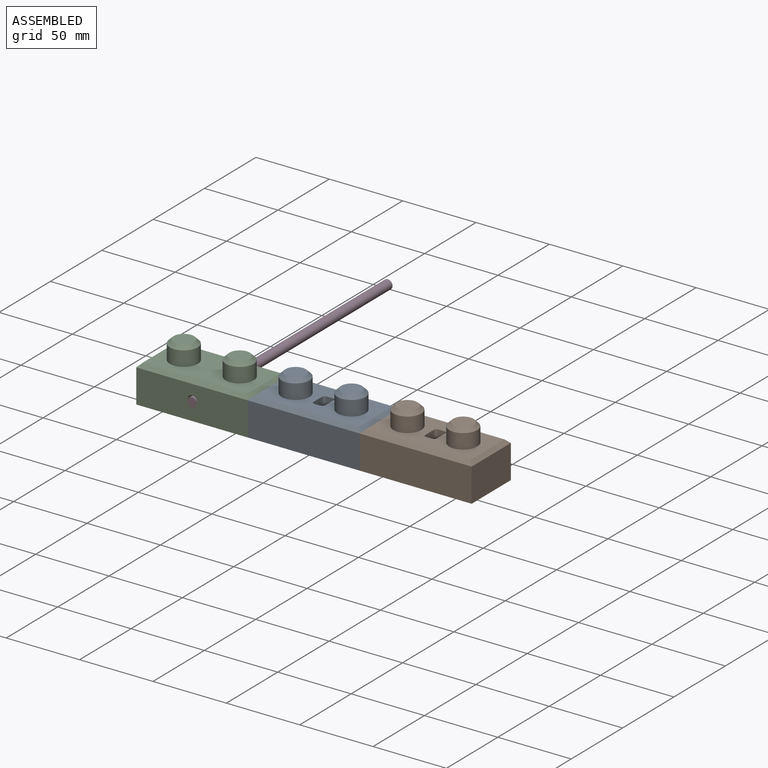
[diagram: assembled view]
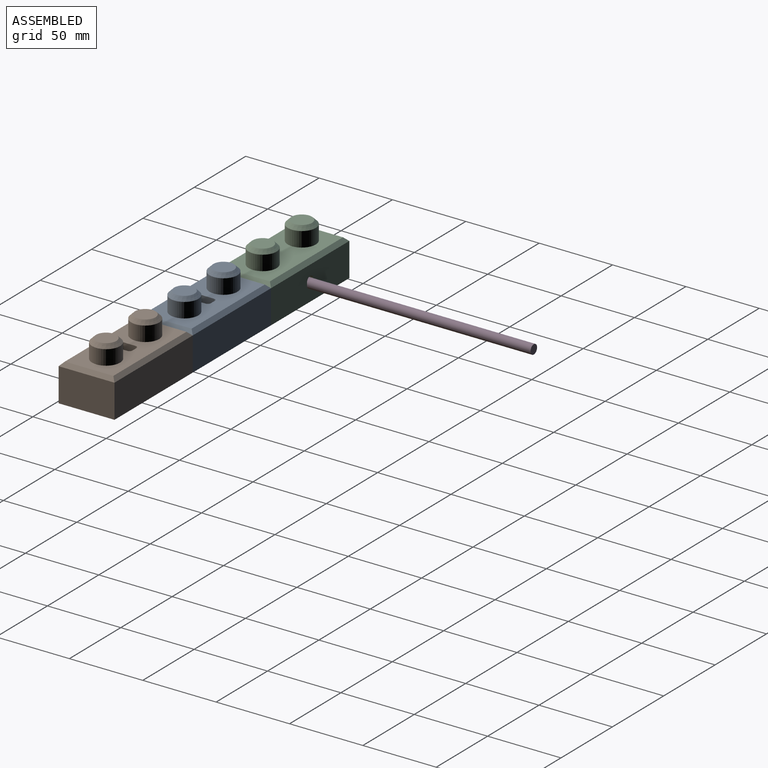
[diagram: assembled view, second angle]
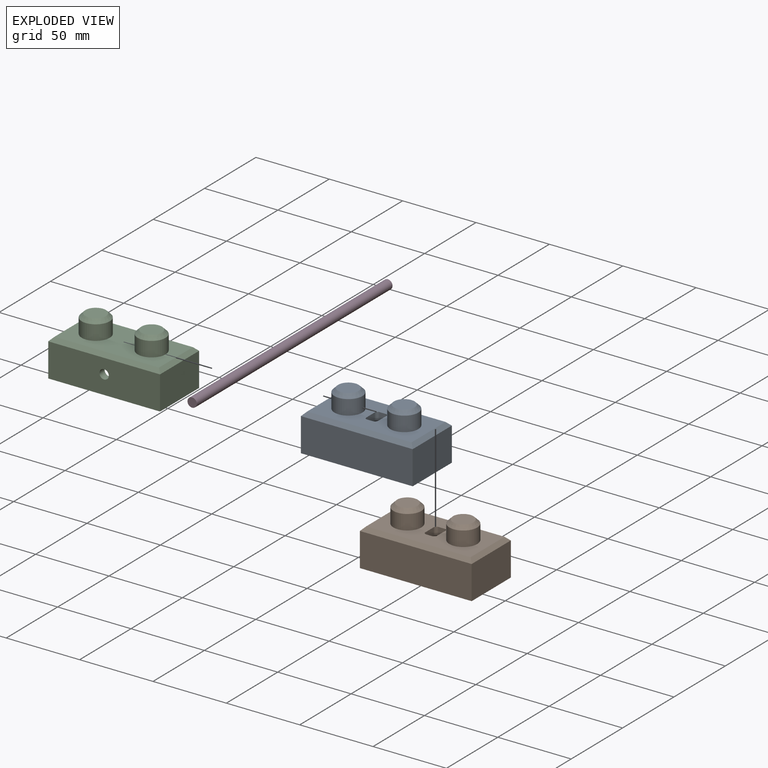
[diagram: exploded view]
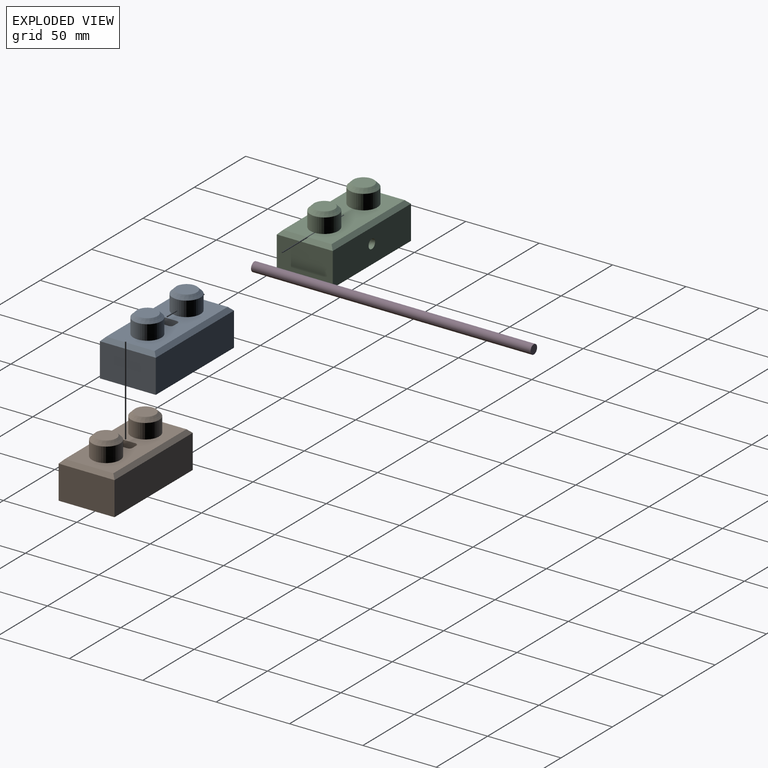
[diagram: exploded view, second angle]
ASSEMBLY  parts=4 mates=3
PART A: 33 faces, bbox 76.2x38.1x38.1 mm
  f0: plane 71.12x33.02mm, normal (0,0,1), area 1685.8mm2, adj f7,f9,f13,f14,f15,f16,f25,f26
  f1: plane 66.04x27.94mm, normal (0,0,-1), area 1628.4mm2, adj f19,f20,f21,f22,f23,f24,f25,f26
  f2: plane 76.2x38.1mm, normal (0,0,-1), area 1058.1mm2, adj f3,f4,f5,f6,f19,f20,f21,f22
  f3: plane 76.2x22.86mm, normal (0,1,0), area 1741.9mm2, adj f2,f4,f6,f16
  f4: plane 38.1x22.86mm, normal (-1,0,0), area 871mm2, adj f2,f3,f5,f14
  f5: plane 76.2x22.86mm, normal (0,-1,0), area 1741.9mm2, adj f2,f4,f6,f13
  f6: plane 38.1x22.86mm, normal (1,0,0), area 871mm2, adj f2,f3,f5,f15
  f7: cylinder r=9.53mm len=19.05mm, axis (0,0,-1), area 608mm2, adj f0,f12
  f8: plane 13.97x13.97mm, normal (0,0,1), area 153.3mm2, adj f12
  f9: cylinder r=9.53mm len=19.05mm, axis (0,0,-1), area 608mm2, adj f0,f11
  f10: plane 13.97x13.97mm, normal (0,0,1), area 153.3mm2, adj f11
  f11: cone r=6.99mm half-angle=45deg, axis (0,0,-1), area 186.3mm2, adj f9,f10
  f12: cone r=6.99mm half-angle=45deg, axis (0,0,-1), area 186.3mm2, adj f7,f8
  f13: plane 76.2x2.54mm, normal (0,-0.71,0.71), area 264.6mm2, adj f0,f5,f14,f15
  f14: plane 38.1x2.54mm, normal (-0.71,0,0.71), area 127.7mm2, adj f0,f4,f13,f16
  f15: plane 38.1x2.54mm, normal (0.71,0,0.71), area 127.7mm2, adj f0,f6,f13,f16
  f16: plane 76.2x2.54mm, normal (0,0.71,0.71), area 264.6mm2, adj f0,f3,f14,f15
  f17: plane 8.89x8.89mm, normal (0,0,-1), area 62.1mm2, adj f24
  f18: plane 8.89x8.89mm, normal (0,0,-1), area 62.1mm2, adj f23
  f19: plane 66.04x20.32mm, normal (0,-1,0), area 1341.9mm2, adj f1,f2,f20,f22
  f20: plane 27.94x20.32mm, normal (1,0,0), area 567.7mm2, adj f1,f2,f19,f21
  f21: plane 66.04x20.32mm, normal (0,1,0), area 1341.9mm2, adj f1,f2,f20,f22
  f22: plane 27.94x20.32mm, normal (-1,0,0), area 567.7mm2, adj f1,f2,f19,f21
  f23: cylinder r=4.45mm len=12.7mm, axis (0,0,-1), area 354.7mm2, adj f1,f18
  f24: cylinder r=4.45mm len=12.7mm, axis (0,0,-1), area 354.7mm2, adj f1,f17
  f25: plane 5.08x4mm, normal (0,-1,0), area 20.3mm2, adj f0,f1,f26,f32
  f26: cylinder r=2mm len=5.08mm, axis (0,0,1), area 16mm2, adj f0,f1,f25,f27
  f27: plane 8x5.08mm, normal (1,0,0), area 40.6mm2, adj f0,f1,f26,f28
  f28: cylinder r=2mm len=5.08mm, axis (0,0,1), area 16mm2, adj f0,f1,f27,f29
  f29: plane 5.08x4mm, normal (0,1,0), area 20.3mm2, adj f0,f1,f28,f30
  f30: cylinder r=2mm len=5.08mm, axis (0,0,1), area 16mm2, adj f0,f1,f29,f31
  f31: plane 8x5.08mm, normal (-1,0,0), area 40.6mm2, adj f0,f1,f30,f32
  f32: cylinder r=2mm len=5.08mm, axis (0,0,1), area 16mm2, adj f0,f1,f25,f31
PART B: same geometry as A
PART C: 27 faces, bbox 76.2x38.1x38.1 mm
  f0: plane 76.2x38.1mm, normal (0,0,-1), area 1058.1mm2, adj f1,f2,f3,f4,f19,f20,f21,f22
  f1: plane 76.2x22.86mm, normal (0,1,0), area 1710.3mm2, adj f0,f2,f4,f15,f26
  f2: plane 38.1x22.86mm, normal (-1,0,0), area 871mm2, adj f0,f1,f3,f13
  f3: plane 76.2x22.86mm, normal (0,-1,0), area 1710.3mm2, adj f0,f2,f4,f12,f25
  f4: plane 38.1x22.86mm, normal (1,0,0), area 871mm2, adj f0,f1,f3,f14
  f5: plane 71.12x33.02mm, normal (0,0,1), area 1778.3mm2, adj f6,f8,f12,f13,f14,f15
  f6: cylinder r=9.53mm len=19.05mm, axis (0,0,-1), area 608mm2, adj f5,f11
  f7: plane 13.97x13.97mm, normal (0,0,1), area 153.3mm2, adj f11
  f8: cylinder r=9.53mm len=19.05mm, axis (0,0,-1), area 608mm2, adj f5,f10
  f9: plane 13.97x13.97mm, normal (0,0,1), area 153.3mm2, adj f10
  f10: cone r=6.99mm half-angle=45deg, axis (0,0,-1), area 186.3mm2, adj f8,f9
  f11: cone r=6.99mm half-angle=45deg, axis (0,0,-1), area 186.3mm2, adj f6,f7
  f12: plane 76.2x2.54mm, normal (0,-0.71,0.71), area 264.6mm2, adj f3,f5,f13,f14
  f13: plane 38.1x2.54mm, normal (-0.71,0,0.71), area 127.7mm2, adj f2,f5,f12,f15
  f14: plane 38.1x2.54mm, normal (0.71,0,0.71), area 127.7mm2, adj f4,f5,f12,f15
  f15: plane 76.2x2.54mm, normal (0,0.71,0.71), area 264.6mm2, adj f1,f5,f13,f14
  f16: plane 8.89x8.89mm, normal (0,0,-1), area 62.1mm2, adj f24
  f17: plane 8.89x8.89mm, normal (0,0,-1), area 62.1mm2, adj f23
  f18: plane 66.04x27.94mm, normal (0,0,-1), area 1721mm2, adj f19,f20,f21,f22,f23,f24
  f19: plane 66.04x20.32mm, normal (0,-1,0), area 1310.3mm2, adj f0,f18,f20,f22,f26
  f20: plane 27.94x20.32mm, normal (1,0,0), area 567.7mm2, adj f0,f18,f19,f21
  f21: plane 66.04x20.32mm, normal (0,1,0), area 1310.3mm2, adj f0,f18,f20,f22,f25
  f22: plane 27.94x20.32mm, normal (-1,0,0), area 567.7mm2, adj f0,f18,f19,f21
  f23: cylinder r=4.45mm len=12.7mm, axis (0,0,-1), area 354.7mm2, adj f17,f18
  f24: cylinder r=4.45mm len=12.7mm, axis (0,0,-1), area 354.7mm2, adj f16,f18
  f25: cylinder r=3.17mm len=6.35mm, axis (0,-1,0), area 101.3mm2, adj f3,f21
  f26: cylinder r=3.17mm len=6.35mm, axis (0,-1,0), area 101.3mm2, adj f1,f19
PART D: 3 faces, bbox 6.4x6.4x190.5 mm
  f0: cylinder r=3.17mm len=190.5mm, axis (0,0,-1), area 3800.3mm2, adj f1,f2
  f1: plane 6.35x6.35mm, normal (0,0,1), area 31.7mm2, adj f0
  f2: plane 6.35x6.35mm, normal (0,0,-1), area 31.7mm2, adj f0
PLACE A rot(axis=(0,0,1),180deg) t=(76.2,0,0)mm
PLACE B t=(152.4,0,0)mm
PLACE C at identity fixed
PLACE D rot(axis=(1,0,0),90deg) t=(0,171.45,11.41)mm
MATE fastened C.f4 <-> A.f6  axis (1,0,0) through (38.1,0,11.43)mm
MATE fastened A.f2 <-> B.f2  axis (0,0,-1) through (114.3,-19.05,0)mm
MATE revolute C.f3 <-> D.f0  axis (0,-1,0) through (0,-19.05,11.41)mm
